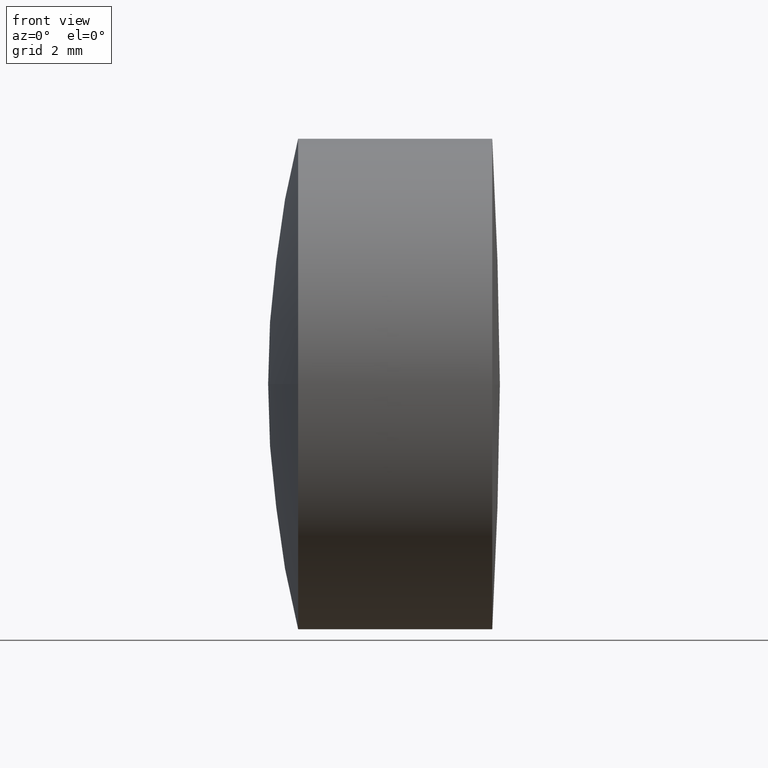
[diagram: clean part render]
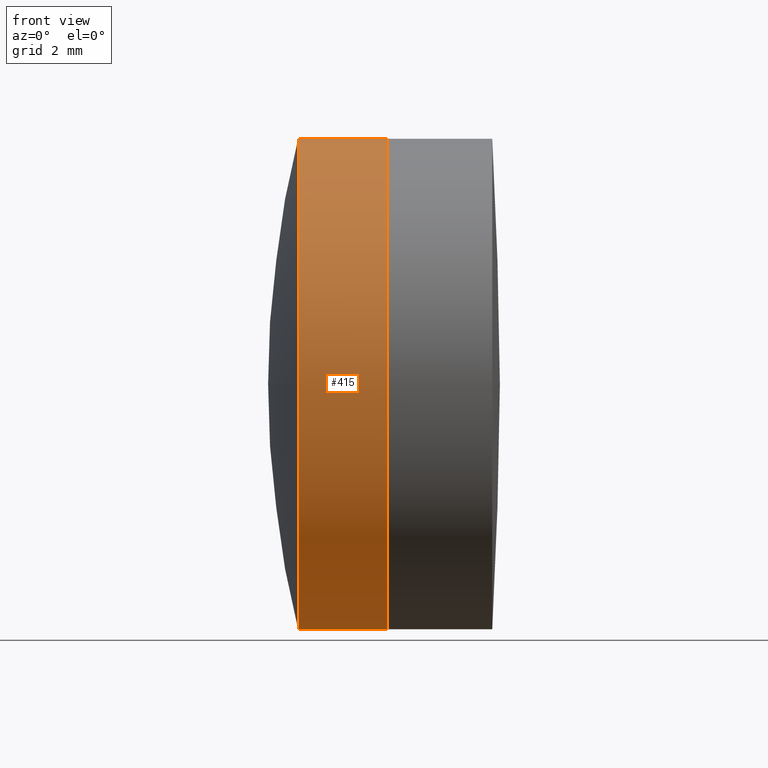
[diagram: same view with one face highlighted and labeled with its STEP entity id]
A machine part, front view. The second image highlights one B-rep face of the part: STEP entity #415.
In plain terms, the highlighted cylindrical surface (partial cylindrical patch) has radius 6.35 mm, axis along (-1, -0, -0).
Its self-contained STEP definition (entity closure, byte-faithful):
#3 = VERTEX_POINT ( 'NONE', #325 ) ;
#4 = DIRECTION ( 'NONE',  ( -1.000000000000000000, -0.000000000000000000, -0.000000000000000000 ) ) ;
#7 = ORIENTED_EDGE ( 'NONE', *, *, #126, .T. ) ;
#26 = EDGE_CURVE ( 'NONE', #3, #435, #308, .T. ) ;
#29 = CARTESIAN_POINT ( 'NONE',  ( -45.92046947869103235, 29.23725402614865843, -6.349999999999999645 ) ) ;
#32 = CARTESIAN_POINT ( 'NONE',  ( -42.82922239068432191, 29.23725402614865843, 6.349999999999999645 ) ) ;
#39 = ORIENTED_EDGE ( 'NONE', *, *, #26, .F. ) ;
#51 = EDGE_CURVE ( 'NONE', #435, #176, #350, .T. ) ;
#60 = AXIS2_PLACEMENT_3D ( 'NONE', #266, #91, #226 ) ;
#67 = DIRECTION ( 'NONE',  ( -1.000000000000000000, -0.000000000000000000, -0.000000000000000000 ) ) ;
#72 = EDGE_CURVE ( 'NONE', #170, #119, #230, .T. ) ;
#91 = DIRECTION ( 'NONE',  ( -1.000000000000000000, -0.000000000000000000, -0.000000000000000000 ) ) ;
#92 = AXIS2_PLACEMENT_3D ( 'NONE', #361, #188, #356 ) ;
#103 = ORIENTED_EDGE ( 'NONE', *, *, #265, .T. ) ;
#109 = DIRECTION ( 'NONE',  ( 0.000000000000000000, 0.000000000000000000, 1.000000000000000000 ) ) ;
#119 = VERTEX_POINT ( 'NONE', #130 ) ;
#120 = CIRCLE ( 'NONE', #370, 6.349999999999999645 ) ;
#126 = EDGE_CURVE ( 'NONE', #423, #176, #164, .T. ) ;
#130 = CARTESIAN_POINT ( 'NONE',  ( -42.82922239068432191, 22.88725402614865700, -7.776507174585690191E-16 ) ) ;
#140 = ORIENTED_EDGE ( 'NONE', *, *, #72, .T. ) ;
#144 = FACE_OUTER_BOUND ( 'NONE', #205, .T. ) ;
#148 = DIRECTION ( 'NONE',  ( -1.000000000000000000, -0.000000000000000000, -0.000000000000000000 ) ) ;
#149 = VECTOR ( 'NONE', #333, 1000.000000000000000 ) ;
#164 = LINE ( 'NONE', #304, #149 ) ;
#165 = CARTESIAN_POINT ( 'NONE',  ( -45.14358939782461988, 29.23725402614865843, 6.349999999999999645 ) ) ;
#170 = VERTEX_POINT ( 'NONE', #199 ) ;
#176 = VERTEX_POINT ( 'NONE', #165 ) ;
#186 = ORIENTED_EDGE ( 'NONE', *, *, #274, .F. ) ;
#188 = DIRECTION ( 'NONE',  ( -1.000000000000000000, -0.000000000000000000, -0.000000000000000000 ) ) ;
#199 = CARTESIAN_POINT ( 'NONE',  ( -42.82922239068432191, 29.23725402614865843, -6.349999999999999645 ) ) ;
#205 = EDGE_LOOP ( 'NONE', ( #186, #140, #103, #7, #378, #39 ) ) ;
#226 = DIRECTION ( 'NONE',  ( 0.000000000000000000, 0.000000000000000000, 1.000000000000000000 ) ) ;
#230 = CIRCLE ( 'NONE', #92, 6.349999999999999645 ) ;
#257 = AXIS2_PLACEMENT_3D ( 'NONE', #422, #4, #109 ) ;
#265 = EDGE_CURVE ( 'NONE', #119, #423, #120, .T. ) ;
#266 = CARTESIAN_POINT ( 'NONE',  ( -45.14358939782461988, 29.23725402614865843, 0.000000000000000000 ) ) ;
#274 = EDGE_CURVE ( 'NONE', #170, #3, #302, .T. ) ;
#285 = CYLINDRICAL_SURFACE ( 'NONE', #257, 6.349999999999999645 ) ;
#302 = LINE ( 'NONE', #29, #433 ) ;
#303 = DIRECTION ( 'NONE',  ( -1.000000000000000000, -0.000000000000000000, -0.000000000000000000 ) ) ;
#304 = CARTESIAN_POINT ( 'NONE',  ( -45.92046947869103235, 29.23725402614865843, 6.349999999999999645 ) ) ;
#308 = CIRCLE ( 'NONE', #60, 6.349999999999999645 ) ;
#325 = CARTESIAN_POINT ( 'NONE',  ( -45.14358939782461988, 29.23725402614865843, -6.349999999999999645 ) ) ;
#333 = DIRECTION ( 'NONE',  ( -1.000000000000000000, -0.000000000000000000, -0.000000000000000000 ) ) ;
#335 = DIRECTION ( 'NONE',  ( 0.000000000000000000, 0.000000000000000000, 1.000000000000000000 ) ) ;
#350 = CIRCLE ( 'NONE', #409, 6.349999999999999645 ) ;
#356 = DIRECTION ( 'NONE',  ( 0.000000000000000000, 0.000000000000000000, 1.000000000000000000 ) ) ;
#361 = CARTESIAN_POINT ( 'NONE',  ( -42.82922239068432191, 29.23725402614865843, 0.000000000000000000 ) ) ;
#370 = AXIS2_PLACEMENT_3D ( 'NONE', #408, #67, #335 ) ;
#378 = ORIENTED_EDGE ( 'NONE', *, *, #51, .F. ) ;
#392 = CARTESIAN_POINT ( 'NONE',  ( -45.14358939782461988, 29.23725402614865843, 0.000000000000000000 ) ) ;
#408 = CARTESIAN_POINT ( 'NONE',  ( -42.82922239068432191, 29.23725402614865843, 0.000000000000000000 ) ) ;
#409 = AXIS2_PLACEMENT_3D ( 'NONE', #392, #148, #430 ) ;
#415 = ADVANCED_FACE ( 'NONE', ( #144 ), #285, .T. ) ;
#422 = CARTESIAN_POINT ( 'NONE',  ( -45.92046947869103235, 29.23725402614865843, 0.000000000000000000 ) ) ;
#423 = VERTEX_POINT ( 'NONE', #32 ) ;
#430 = DIRECTION ( 'NONE',  ( 0.000000000000000000, 0.000000000000000000, 1.000000000000000000 ) ) ;
#433 = VECTOR ( 'NONE', #303, 1000.000000000000000 ) ;
#435 = VERTEX_POINT ( 'NONE', #446 ) ;
#446 = CARTESIAN_POINT ( 'NONE',  ( -45.14358939782461988, 22.88725402614876003, -7.776507174585568903E-16 ) ) ;